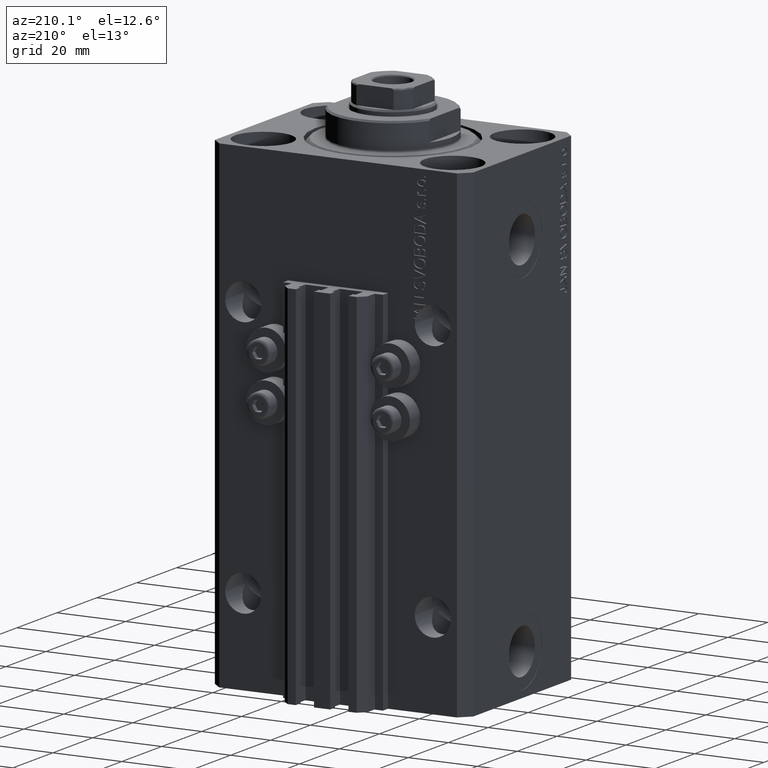
[diagram: clean part render]
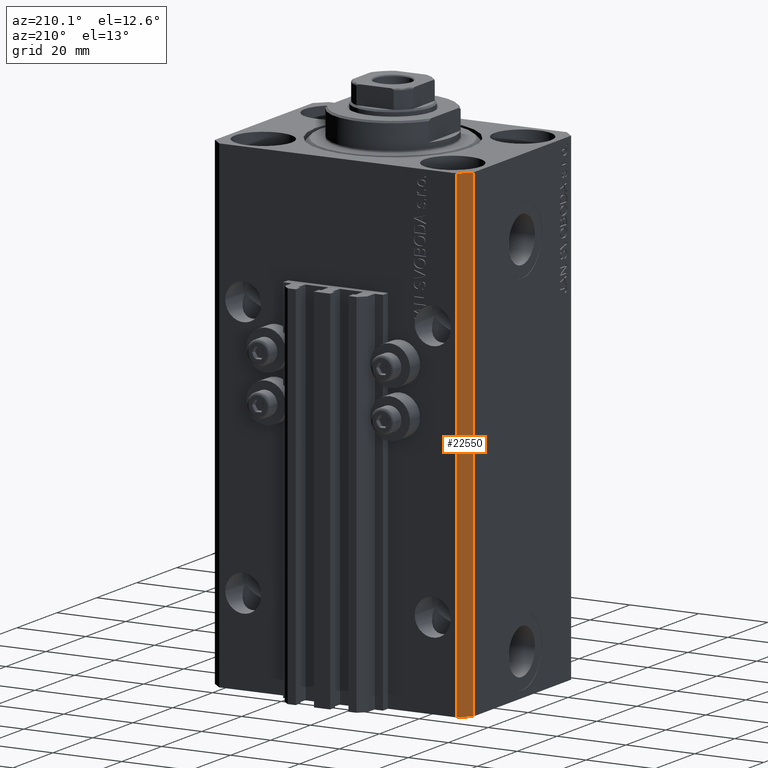
[diagram: same view with one face highlighted and labeled with its STEP entity id]
A machine part, auxiliary view. The second image highlights one B-rep face of the part: STEP entity #22550.
In plain terms, the highlighted planar face has unit normal (-0.7071, 0.7071, 0).
Its self-contained STEP definition (entity closure, byte-faithful):
#84 = EDGE_CURVE ( 'NONE', #43995, #5647, #41313, .T. ) ;
#2973 = CARTESIAN_POINT ( 'NONE',  ( -34.49999999999999289, 27.50000000000000000, -140.0000000000000000 ) ) ;
#4665 = EDGE_LOOP ( 'NONE', ( #33663, #28802, #9513, #26501 ) ) ;
#5647 = VERTEX_POINT ( 'NONE', #44889 ) ;
#6883 = LINE ( 'NONE', #24584, #41138 ) ;
#8445 = DIRECTION ( 'NONE',  ( -0.7071067811865471286, -0.7071067811865479058, 0.000000000000000000 ) ) ;
#8907 = CARTESIAN_POINT ( 'NONE',  ( -34.49999999999999289, 27.50000000000000000, 0.000000000000000000 ) ) ;
#9513 = ORIENTED_EDGE ( 'NONE', *, *, #16839, .T. ) ;
#16142 = CARTESIAN_POINT ( 'NONE',  ( -34.49999999999999289, 27.50000000000000000, -140.0000000000000000 ) ) ;
#16349 = CARTESIAN_POINT ( 'NONE',  ( -34.49999999999999289, 27.50000000000000000, -140.0000000000000000 ) ) ;
#16839 = EDGE_CURVE ( 'NONE', #43995, #23479, #33395, .T. ) ;
#17131 = DIRECTION ( 'NONE',  ( -0.7071067811865479058, 0.7071067811865471286, 0.000000000000000000 ) ) ;
#17170 = DIRECTION ( 'NONE',  ( 0.000000000000000000, 0.000000000000000000, 1.000000000000000000 ) ) ;
#22550 = ADVANCED_FACE ( 'NONE', ( #38917 ), #28843, .T. ) ;
#23087 = DIRECTION ( 'NONE',  ( 0.000000000000000000, 0.000000000000000000, 1.000000000000000000 ) ) ;
#23479 = VERTEX_POINT ( 'NONE', #36760 ) ;
#24122 = VECTOR ( 'NONE', #24474, 1000.000000000000000 ) ;
#24474 = DIRECTION ( 'NONE',  ( -0.7071067811865471286, -0.7071067811865479058, 0.000000000000000000 ) ) ;
#24494 = VECTOR ( 'NONE', #23087, 1000.000000000000000 ) ;
#24584 = CARTESIAN_POINT ( 'NONE',  ( -37.49999999999999289, 24.50000000000000000, -140.0000000000000000 ) ) ;
#26501 = ORIENTED_EDGE ( 'NONE', *, *, #42430, .T. ) ;
#28802 = ORIENTED_EDGE ( 'NONE', *, *, #84, .F. ) ;
#28843 = PLANE ( 'NONE',  #41904 ) ;
#33395 = LINE ( 'NONE', #16349, #24122 ) ;
#33663 = ORIENTED_EDGE ( 'NONE', *, *, #34667, .F. ) ;
#34667 = EDGE_CURVE ( 'NONE', #5647, #34909, #45072, .T. ) ;
#34909 = VERTEX_POINT ( 'NONE', #40955 ) ;
#35345 = CARTESIAN_POINT ( 'NONE',  ( -34.49999999999999289, 27.50000000000000000, -140.0000000000000000 ) ) ;
#36100 = VECTOR ( 'NONE', #8445, 1000.000000000000000 ) ;
#36760 = CARTESIAN_POINT ( 'NONE',  ( -37.49999999999999289, 24.50000000000000000, -140.0000000000000000 ) ) ;
#38917 = FACE_OUTER_BOUND ( 'NONE', #4665, .T. ) ;
#40955 = CARTESIAN_POINT ( 'NONE',  ( -37.49999999999999289, 24.50000000000000000, 0.000000000000000000 ) ) ;
#41138 = VECTOR ( 'NONE', #17170, 1000.000000000000000 ) ;
#41313 = LINE ( 'NONE', #16142, #24494 ) ;
#41904 = AXIS2_PLACEMENT_3D ( 'NONE', #35345, #17131, #43458 ) ;
#42430 = EDGE_CURVE ( 'NONE', #23479, #34909, #6883, .T. ) ;
#43458 = DIRECTION ( 'NONE',  ( -0.7071067811865471286, -0.7071067811865479058, 0.000000000000000000 ) ) ;
#43995 = VERTEX_POINT ( 'NONE', #2973 ) ;
#44889 = CARTESIAN_POINT ( 'NONE',  ( -34.49999999999999289, 27.50000000000000000, 0.000000000000000000 ) ) ;
#45072 = LINE ( 'NONE', #8907, #36100 ) ;